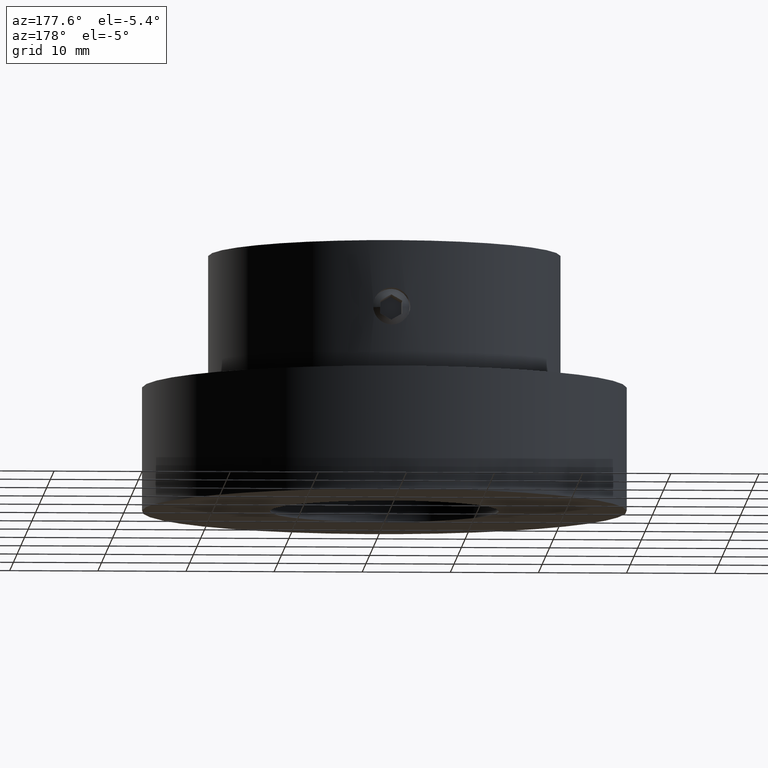
[diagram: clean part render]
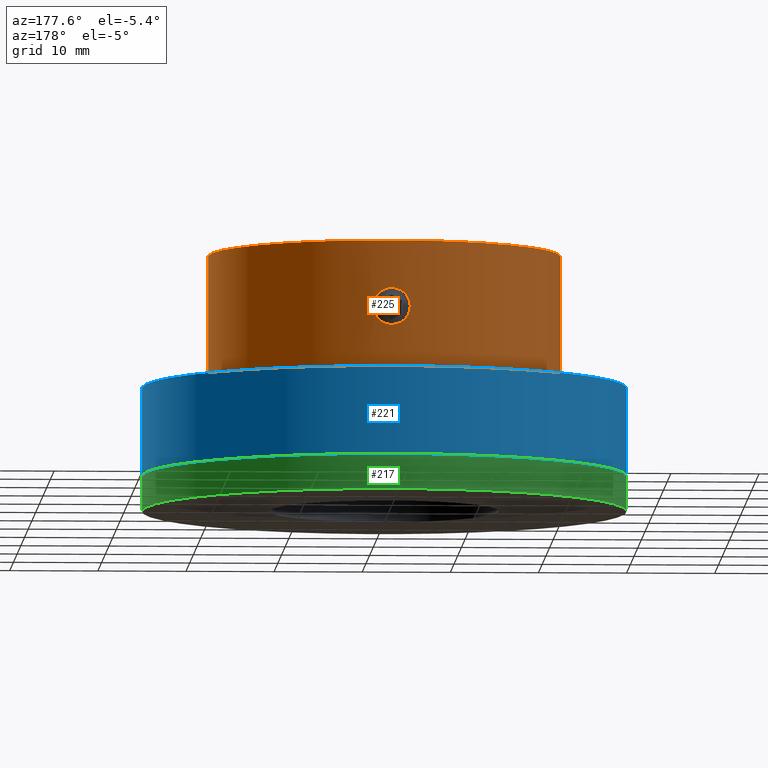
[diagram: same view with three faces highlighted in distinct colors, each labeled with its STEP entity id]
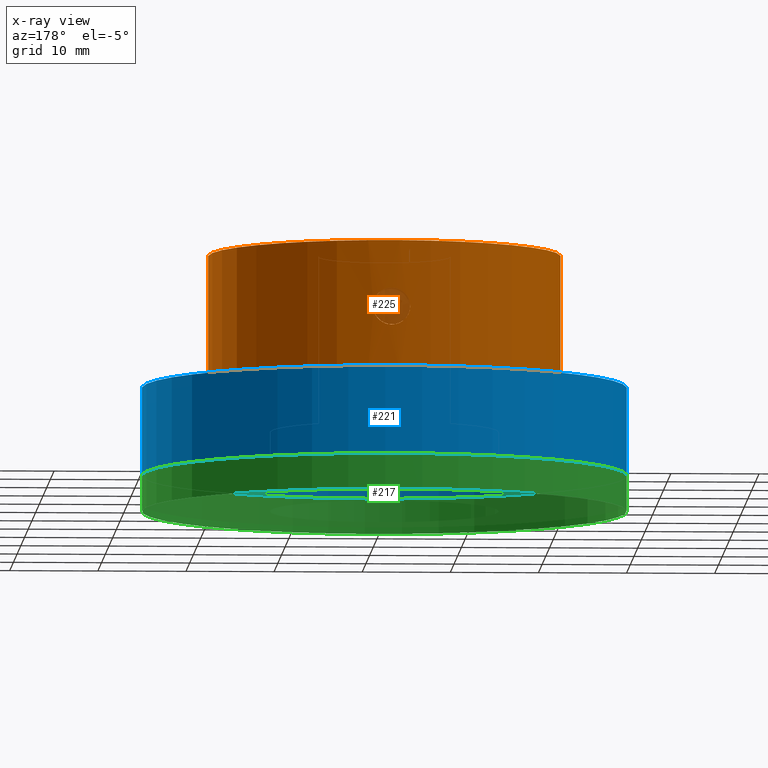
[diagram: x-ray of the same camera — body ghosted, the three highlighted faces saturated]
A machine part, auxiliary view with three faces highlighted in distinct colors.
The next image is the same camera in x-ray (body ghosted, the three faces saturated) — at least one of them is partly hidden behind the body in this view.
Their STEP definitions:

[orange] entity #225 — the highlighted cylindrical surface (bore or boss wall) has radius 20 mm, axis along (0, -0, 1).
#225 = ADVANCED_FACE( '', ( #271, #272, #273 ), #274, .T. );
#271 = FACE_BOUND( '', #343, .T. );
#272 = FACE_OUTER_BOUND( '', #344, .T. );
#273 = FACE_OUTER_BOUND( '', #345, .T. );
#274 = CYLINDRICAL_SURFACE( '', #346, 20.0000000000000 );
#343 = EDGE_LOOP( '', ( #445 ) );
#344 = EDGE_LOOP( '', ( #446 ) );
#345 = EDGE_LOOP( '', ( #447 ) );
#346 = AXIS2_PLACEMENT_3D( '', #448, #449, #450 );
#445 = ORIENTED_EDGE( '', *, *, #581, .T. );
#446 = ORIENTED_EDGE( '', *, *, #567, .F. );
#447 = ORIENTED_EDGE( '', *, *, #582, .T. );
#448 = CARTESIAN_POINT( '', ( 0.000000000000000, 0.000000000000000, 29.0000000000000 ) );
#449 = DIRECTION( '', ( 0.000000000000000, -0.000000000000000, 1.00000000000000 ) );
#450 = DIRECTION( '', ( -1.00000000000000, 0.000000000000000, 0.000000000000000 ) );
#567 = EDGE_CURVE( '', #617, #617, #618, .T. );
#581 = EDGE_CURVE( '', #642, #642, #643, .T. );
#582 = EDGE_CURVE( '', #644, #644, #645, .T. );
#617 = VERTEX_POINT( '', #697 );
#618 = CIRCLE( '', #698, 20.0000000000000 );
#642 = VERTEX_POINT( '', #730 );
#643 = B_SPLINE_CURVE_WITH_KNOTS( '', 3, ( #731, #732, #733, #734, #735, #736, #737, #738, #739, #740, #741, #742, #743, #744, #745, #746, #747, #748, #749, #750, #751, #752, #753, #754, #755, #756, #757, #758, #759, #760, #761, #762, #763, #764, #765, #766, #767, #768, #769, #770, #771, #772, #773, #774, #775, #776, #777, #778, #779, #780, #781, #782, #783, #784 ), .UNSPECIFIED., .T., .F., ( 2, 2, 2, 2, 2, 2, 2, 2, 2, 2, 2, 2, 2, 2, 2, 2, 2, 2, 2, 2, 2, 2, 2, 2, 2, 2, 2, 2, 2 ), ( -0.000821163446587745, 0.000000000000000, 0.000410581723293875, 0.000821163446587749, 0.00123174516988162, 0.00164232689317550, 0.00246349033976325, 0.00328465378635100, 0.00369523550964487, 0.00410581723293875, 0.00451639895623262, 0.00492698067952650, 0.00533756240282037, 0.00574814412611425, 0.00615872584940812, 0.00656930757270200, 0.00739047101928974, 0.00821163446587747, 0.00862221618917135, 0.00903279791246522, 0.00944337963575909, 0.00985396135905297, 0.0102645430823468, 0.0106751248056407, 0.0110857065289346, 0.0114962882522285, 0.0123174516988162, 0.0131386151454040, 0.0135491968686978 ), .UNSPECIFIED. );
#644 = VERTEX_POINT( '', #785 );
#645 = CIRCLE( '', #786, 20.0000000000000 );
#697 = CARTESIAN_POINT( '', ( 20.0000000000000, 0.000000000000000, 29.0000000000000 ) );
#698 = AXIS2_PLACEMENT_3D( '', #945, #946, #947 );
#730 = CARTESIAN_POINT( '', ( -2.10000000000000, 19.8894444366855, 21.5000000000000 ) );
#731 = CARTESIAN_POINT( '', ( -2.10000000000000, 19.8894444366855, 21.7776771849484 ) );
#732 = CARTESIAN_POINT( '', ( -2.10000000000000, 19.8894444366855, 21.3611614075258 ) );
#733 = CARTESIAN_POINT( '', ( -2.08636700651663, 19.8908972450046, 21.2246621609851 ) );
#734 = CARTESIAN_POINT( '', ( -2.03296828274487, 19.8964258212013, 20.9561450810851 ) );
#735 = CARTESIAN_POINT( '', ( -1.99254751251045, 19.9005668289923, 20.8227286617630 ) );
#736 = CARTESIAN_POINT( '', ( -1.88710917802257, 19.9108418871484, 20.5684630949705 ) );
#737 = CARTESIAN_POINT( '', ( -1.82260119526382, 19.9169268485839, 20.4478833145189 ) );
#738 = CARTESIAN_POINT( '', ( -1.67021219422513, 19.9302845297071, 20.2196813431390 ) );
#739 = CARTESIAN_POINT( '', ( -1.58157614723022, 19.9376036563726, 20.1117080419054 ) );
#740 = CARTESIAN_POINT( '', ( -1.29116845871562, 19.9592227975836, 19.8213592722655 ) );
#741 = CARTESIAN_POINT( '', ( -1.05703255291418, 19.9736480165375, 19.6649285784720 ) );
#742 = CARTESIAN_POINT( '', ( -0.551742581960600, 19.9939869218149, 19.4554010018391 ) );
#743 = CARTESIAN_POINT( '', ( -0.275265372064455, 19.9999841916405, 19.4001505558275 ) );
#744 = CARTESIAN_POINT( '', ( 0.135906190697198, 20.0000078545000, 19.3999251952270 ) );
#745 = CARTESIAN_POINT( '', ( 0.275134808803890, 19.9985612639562, 19.4135764019416 ) );
#746 = CARTESIAN_POINT( '', ( 0.544535395807608, 19.9930396136740, 19.4671832851279 ) );
#747 = CARTESIAN_POINT( '', ( 0.675485208301388, 19.9889949963069, 19.5068461542688 ) );
#748 = CARTESIAN_POINT( '', ( 0.929848208336215, 19.9787783294793, 19.6120580441017 ) );
#749 = CARTESIAN_POINT( '', ( 1.05270242619260, 19.9726011484182, 19.6777695921894 ) );
#750 = CARTESIAN_POINT( '', ( 1.28016569581092, 19.9593124837299, 19.8297060592427 ) );
#751 = CARTESIAN_POINT( '', ( 1.38622716835049, 19.9521438664748, 19.9164619690637 ) );
#752 = CARTESIAN_POINT( '', ( 1.58236351455577, 19.9375474002843, 20.1124322843561 ) );
#753 = CARTESIAN_POINT( '', ( 1.66919311303885, 19.9303693672166, 20.2184015635781 ) );
#754 = CARTESIAN_POINT( '', ( 1.82130330811542, 19.9170450374083, 20.4456971684079 ) );
#755 = CARTESIAN_POINT( '', ( 1.88711212514930, 19.9108416166091, 20.5684674184593 ) );
#756 = CARTESIAN_POINT( '', ( 1.99255702856719, 19.9005658849814, 20.8227543936910 ) );
#757 = CARTESIAN_POINT( '', ( 2.03232519592884, 19.8964918151816, 20.9536473725528 ) );
#758 = CARTESIAN_POINT( '', ( 2.08615793075595, 19.8909194694850, 21.2228863347474 ) );
#759 = CARTESIAN_POINT( '', ( 2.09994926683242, 19.8894497932778, 21.3621345517398 ) );
#760 = CARTESIAN_POINT( '', ( 2.10010103736386, 19.8894337687933, 21.7734060226828 ) );
#761 = CARTESIAN_POINT( '', ( 2.04511040547797, 19.8954407050881, 22.0498745026592 ) );
#762 = CARTESIAN_POINT( '', ( 1.83598354816332, 19.9158279223120, 22.5554633817156 ) );
#763 = CARTESIAN_POINT( '', ( 1.67975986150077, 19.9302790061295, 22.7897148542924 ) );
#764 = CARTESIAN_POINT( '', ( 1.38964766186881, 19.9518992326415, 23.0803856413184 ) );
#765 = CARTESIAN_POINT( '', ( 1.28174506758662, 19.9592128020052, 23.1691167372387 ) );
#766 = CARTESIAN_POINT( '', ( 1.05369576745496, 19.9725504461413, 23.3216877697511 ) );
#767 = CARTESIAN_POINT( '', ( 0.933191970037338, 19.9786216165792, 23.3862887746121 ) );
#768 = CARTESIAN_POINT( '', ( 0.679084256237533, 19.9888722424332, 23.4919280024891 ) );
#769 = CARTESIAN_POINT( '', ( 0.545661189400153, 19.9930057614698, 23.5324839387912 ) );
#770 = CARTESIAN_POINT( '', ( 0.277199768626403, 19.9985295909489, 23.5861201747108 ) );
#771 = CARTESIAN_POINT( '', ( 0.140748090686117, 19.9999861564342, 23.5998681564585 ) );
#772 = CARTESIAN_POINT( '', ( -0.136785924546640, 20.0000136473313, 23.6001299746411 ) );
#773 = CARTESIAN_POINT( '', ( -0.273470454792159, 19.9985812511769, 23.5866123160923 ) );
#774 = CARTESIAN_POINT( '', ( -0.542026981858889, 19.9931049339643, 23.5334561215451 ) );
#775 = CARTESIAN_POINT( '', ( -0.675421392537235, 19.9889974014788, 23.4931783389943 ) );
#776 = CARTESIAN_POINT( '', ( -0.929862461120041, 19.9787779150082, 23.3879379629461 ) );
#777 = CARTESIAN_POINT( '', ( -1.05050697381952, 19.9727191453473, 23.3235279183662 ) );
#778 = CARTESIAN_POINT( '', ( -1.27881048052864, 19.9594017624741, 23.1713655273441 ) );
#779 = CARTESIAN_POINT( '', ( -1.38687808745297, 19.9520927963513, 23.0828175628248 ) );
#780 = CARTESIAN_POINT( '', ( -1.67751971521281, 19.9304711118366, 22.7926316844514 ) );
#781 = CARTESIAN_POINT( '', ( -1.83413694126365, 19.9160003139216, 22.5586530858035 ) );
#782 = CARTESIAN_POINT( '', ( -2.04411051774113, 19.8955457078888, 22.0535493353345 ) );
#783 = CARTESIAN_POINT( '', ( -2.10000000000000, 19.8894444366855, 21.7776771849484 ) );
#784 = CARTESIAN_POINT( '', ( -2.10000000000000, 19.8894444366855, 21.3611614075258 ) );
#785 = CARTESIAN_POINT( '', ( 20.0000000000000, 0.000000000000000, 14.0000000000000 ) );
#786 = AXIS2_PLACEMENT_3D( '', #971, #972, #973 );
#945 = CARTESIAN_POINT( '', ( 0.000000000000000, 0.000000000000000, 29.0000000000000 ) );
#946 = DIRECTION( '', ( 0.000000000000000, 0.000000000000000, 1.00000000000000 ) );
#947 = DIRECTION( '', ( 1.00000000000000, 0.000000000000000, 0.000000000000000 ) );
#971 = CARTESIAN_POINT( '', ( 0.000000000000000, 0.000000000000000, 14.0000000000000 ) );
#972 = DIRECTION( '', ( 0.000000000000000, 0.000000000000000, 1.00000000000000 ) );
#973 = DIRECTION( '', ( 1.00000000000000, 0.000000000000000, 0.000000000000000 ) );

[blue] entity #221 — the highlighted cylindrical surface (bore or boss wall) has radius 27.5 mm, axis along (0, -0, 1).
#221 = ADVANCED_FACE( '', ( #262, #263 ), #264, .T. );
#262 = FACE_OUTER_BOUND( '', #334, .T. );
#263 = FACE_OUTER_BOUND( '', #335, .T. );
#264 = CYLINDRICAL_SURFACE( '', #336, 27.5000000000000 );
#334 = EDGE_LOOP( '', ( #419 ) );
#335 = EDGE_LOOP( '', ( #420 ) );
#336 = AXIS2_PLACEMENT_3D( '', #421, #422, #423 );
#419 = ORIENTED_EDGE( '', *, *, #572, .F. );
#420 = ORIENTED_EDGE( '', *, *, #573, .T. );
#421 = CARTESIAN_POINT( '', ( 0.000000000000000, 0.000000000000000, 14.0000000000000 ) );
#422 = DIRECTION( '', ( 0.000000000000000, -0.000000000000000, 1.00000000000000 ) );
#423 = DIRECTION( '', ( -1.00000000000000, 0.000000000000000, 0.000000000000000 ) );
#572 = EDGE_CURVE( '', #627, #627, #628, .T. );
#573 = EDGE_CURVE( '', #629, #629, #630, .T. );
#627 = VERTEX_POINT( '', #709 );
#628 = CIRCLE( '', #710, 27.5000000000000 );
#629 = VERTEX_POINT( '', #711 );
#630 = CIRCLE( '', #712, 27.5000000000000 );
#709 = CARTESIAN_POINT( '', ( 27.5000000000000, 0.000000000000000, 14.0000000000000 ) );
#710 = AXIS2_PLACEMENT_3D( '', #956, #957, #958 );
#711 = CARTESIAN_POINT( '', ( 27.5000000000000, 0.000000000000000, 4.00000000000000 ) );
#712 = AXIS2_PLACEMENT_3D( '', #959, #960, #961 );
#956 = CARTESIAN_POINT( '', ( 0.000000000000000, 0.000000000000000, 14.0000000000000 ) );
#957 = DIRECTION( '', ( 0.000000000000000, 0.000000000000000, 1.00000000000000 ) );
#958 = DIRECTION( '', ( 1.00000000000000, 0.000000000000000, 0.000000000000000 ) );
#959 = CARTESIAN_POINT( '', ( 0.000000000000000, 0.000000000000000, 4.00000000000000 ) );
#960 = DIRECTION( '', ( 0.000000000000000, 0.000000000000000, 1.00000000000000 ) );
#961 = DIRECTION( '', ( 1.00000000000000, 0.000000000000000, 0.000000000000000 ) );

[green] entity #217 — the highlighted cylindrical surface (bore or boss wall) has radius 27.5 mm, axis along (0, -0, 1).
#217 = ADVANCED_FACE( '', ( #250, #251 ), #252, .T. );
#250 = FACE_OUTER_BOUND( '', #322, .T. );
#251 = FACE_OUTER_BOUND( '', #323, .T. );
#252 = CYLINDRICAL_SURFACE( '', #324, 27.5000000000000 );
#322 = EDGE_LOOP( '', ( #396 ) );
#323 = EDGE_LOOP( '', ( #397 ) );
#324 = AXIS2_PLACEMENT_3D( '', #398, #399, #400 );
#396 = ORIENTED_EDGE( '', *, *, #563, .F. );
#397 = ORIENTED_EDGE( '', *, *, #565, .T. );
#398 = CARTESIAN_POINT( '', ( 0.000000000000000, 0.000000000000000, 4.00000000000000 ) );
#399 = DIRECTION( '', ( 0.000000000000000, -0.000000000000000, 1.00000000000000 ) );
#400 = DIRECTION( '', ( -1.00000000000000, 0.000000000000000, 0.000000000000000 ) );
#563 = EDGE_CURVE( '', #609, #609, #610, .T. );
#565 = EDGE_CURVE( '', #613, #613, #614, .T. );
#609 = VERTEX_POINT( '', #689 );
#610 = CIRCLE( '', #690, 27.5000000000000 );
#613 = VERTEX_POINT( '', #693 );
#614 = CIRCLE( '', #694, 27.5000000000000 );
#689 = CARTESIAN_POINT( '', ( 27.5000000000000, 0.000000000000000, 4.00000000000000 ) );
#690 = AXIS2_PLACEMENT_3D( '', #933, #934, #935 );
#693 = CARTESIAN_POINT( '', ( 27.5000000000000, 0.000000000000000, 0.000000000000000 ) );
#694 = AXIS2_PLACEMENT_3D( '', #939, #940, #941 );
#933 = CARTESIAN_POINT( '', ( 0.000000000000000, 0.000000000000000, 4.00000000000000 ) );
#934 = DIRECTION( '', ( 0.000000000000000, 0.000000000000000, 1.00000000000000 ) );
#935 = DIRECTION( '', ( 1.00000000000000, 0.000000000000000, 0.000000000000000 ) );
#939 = CARTESIAN_POINT( '', ( 0.000000000000000, 0.000000000000000, 0.000000000000000 ) );
#940 = DIRECTION( '', ( 0.000000000000000, 0.000000000000000, 1.00000000000000 ) );
#941 = DIRECTION( '', ( 1.00000000000000, 0.000000000000000, 0.000000000000000 ) );